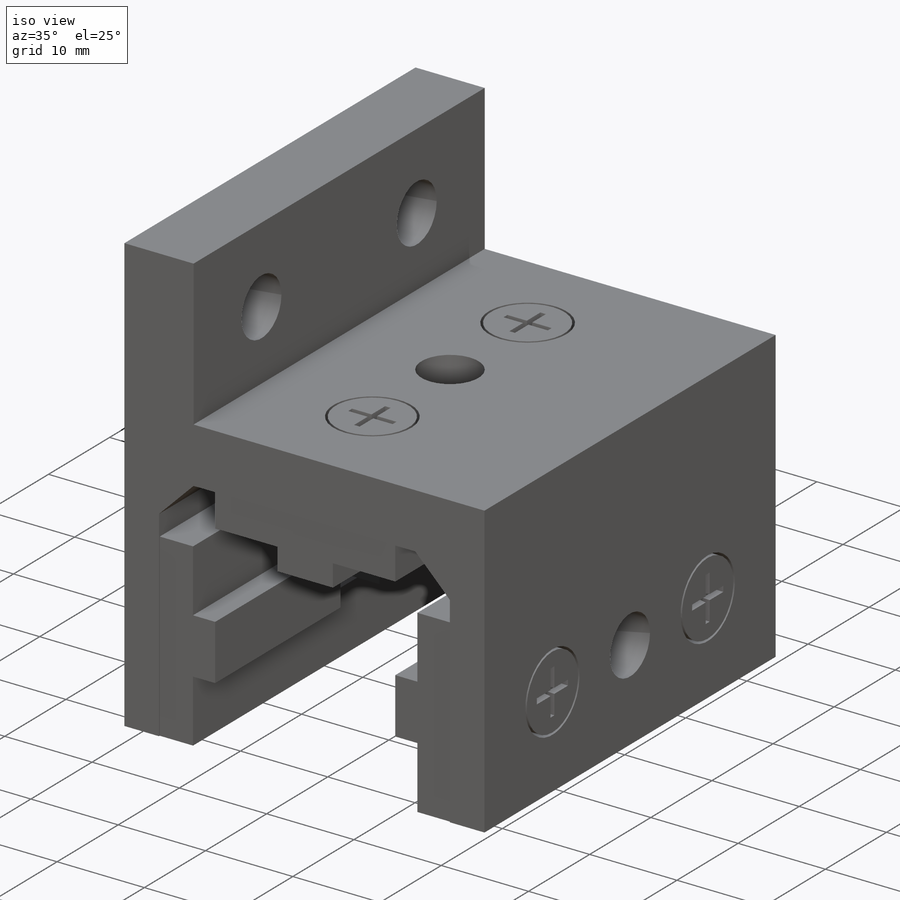
[diagram: iso view]
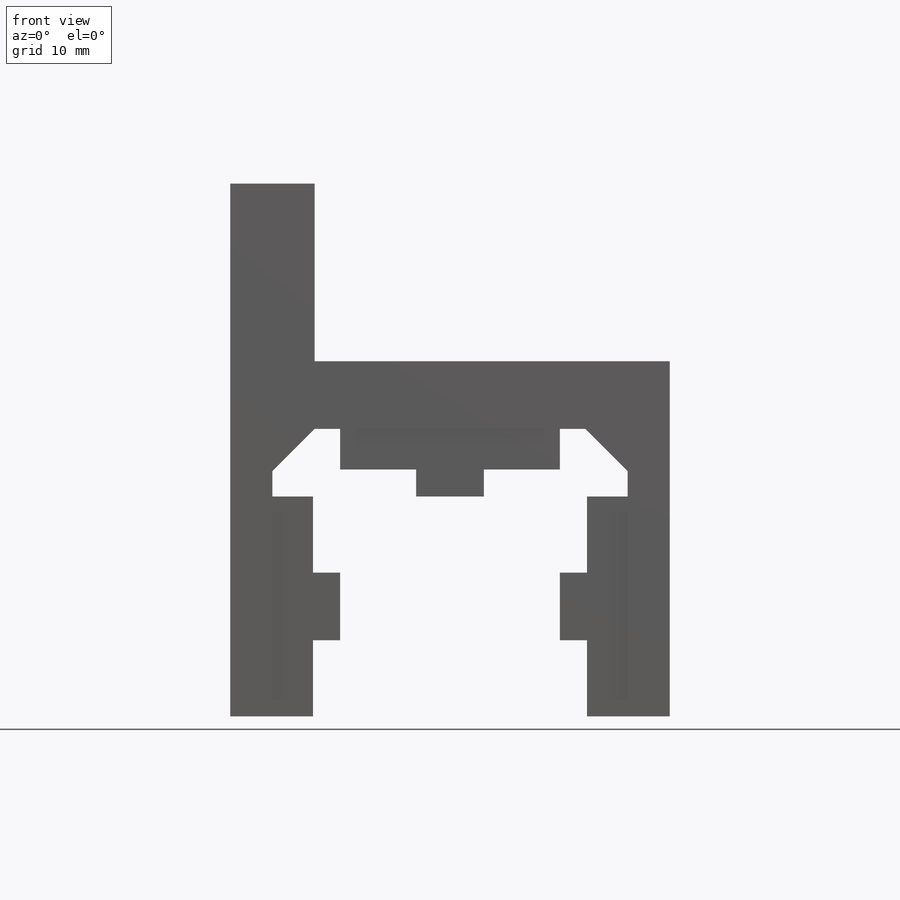
[diagram: front view]
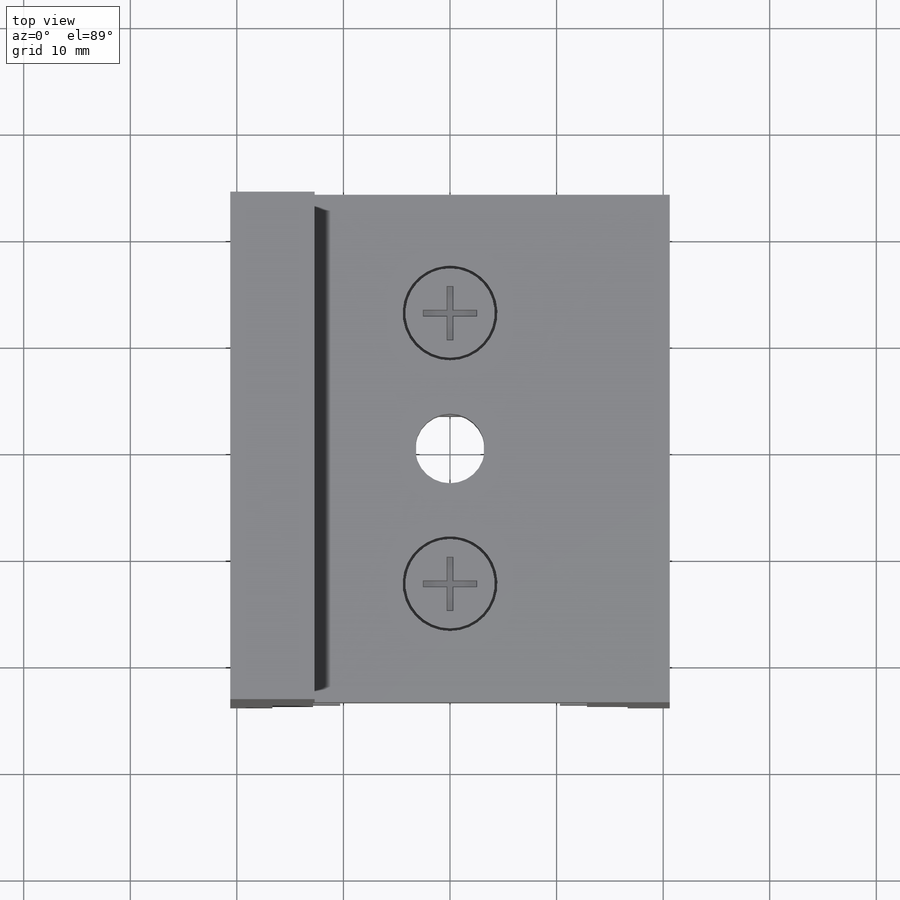
[diagram: top view]
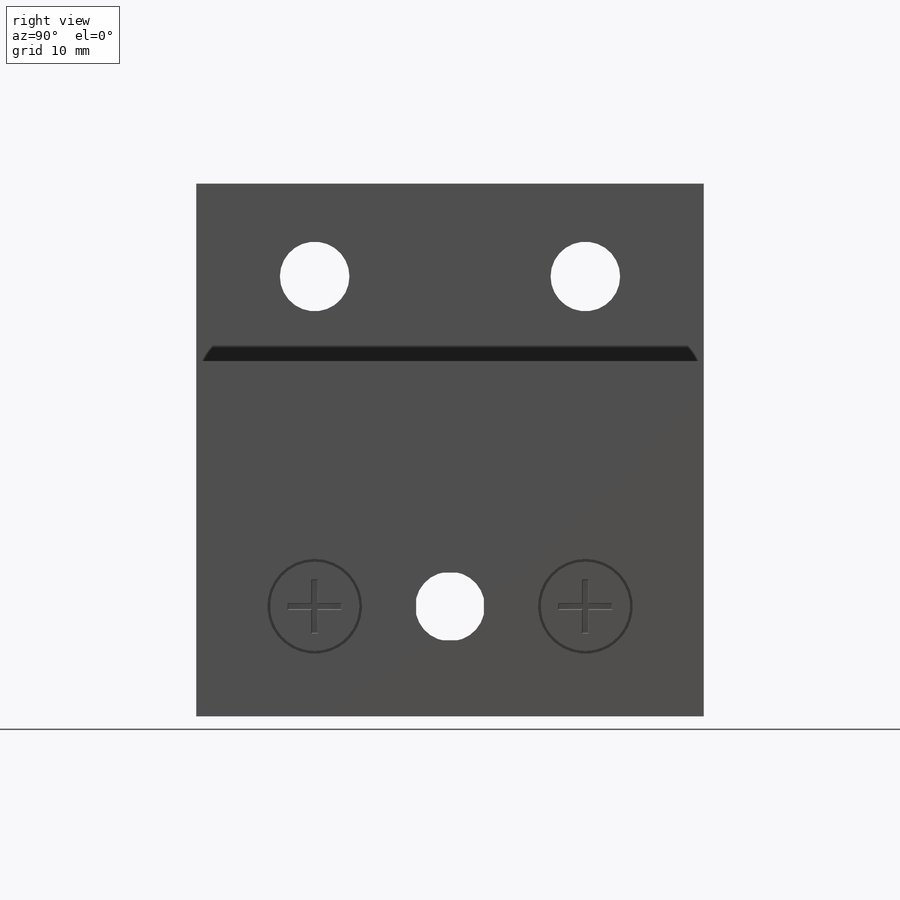
[diagram: right view]
SOLIDWORKS PART (.sldprt)
format: sldprt  version: not decoded by parser v0  size: 528,384 bytes
history: native  units: mm
features: sketch x14, cut_extrude x9, mirror x5, extrude x4, material x1 (+15 scaffold rows collapsed; 1 parser-record rows omitted)
feature tree (49):
  scaffold x15  (default folders/planes/origin — collapsed)
  material  "Material <not specified>"
  sketch  "Sketch1"  dims[c1.Ht=33.3248mm c1.Base Wd=41.2496mm c1.D2=~4.614919mm c2.D2=45.0deg c2.D3=~21.614855mm c2.Leg Thick=3.9624mm c2.Top Thick=6.35mm c2.Pad Wd=20.6248mm c2.Peak Wd=25.4mm]
  extrude  "Boss-Extrude1"  Depth=47.625mm Lg=47.625mm
  sketch  "Sketch2"  dims[Pad Wd=20.6248mm Pad Thick 1=6.35mm Pad Thick 2=3.81mm Pad Nose=6.35mm]
  extrude  "Boss-Extrude2"  Depth=47.371mm Pad Lg=47.371mm
  sketch  "Sketch11"
  cut_extrude  "Cut-Extrude5"  [1 undecoded]
  sketch  "Sketch12"
  cut_extrude  "Cut-Extrude6"  [1 undecoded]
  mirror  "Mirror1"
  sketch  "Sketch3"  dims[Screw Head Dia=8.89mm Screw Spacing=25.4mm D1=0.254mm]
  cut_extrude  "Cut-Extrude1"  Depth=3.175mm
  sketch  "Sketch5"  dims[D1=0.635mm D2=5.08mm]
  cut_extrude  "Cut-Extrude2"  Depth=0.762mm
  sketch  "Sketch13"  dims[c1.D1=8.89mm c2.D1=1.9812mm c2.D5=0.254mm c2.D6=2.54mm c2.D7=5.0mm]
  sketch  "Sketch14"  dims[D1=0.635mm D2=5.08mm]
  cut_extrude  "Cut-Extrude7"  Depth=0.762mm
  mirror  "Mirror4"
  mirror  "Mirror3"
  sketch  "Sketch9"  dims[Top Hole Dia=6.5278mm]
  cut_extrude  "Cut-Extrude4"  [1 undecoded]
  sketch  "Sketch15"  dims[Side Wall Hole Dia=6.5278mm]
  cut_extrude  "Cut-Extrude8"  [1 undecoded]
  sketch  "Sketch6"  dims[Top Flange Thick=2.54mm Oall Ht=49.9872mm Side Flange Thickness=7.9248mm]
  extrude  "Side Flange"  [1 undecoded]
  sketch  "Sketch7"  dims[Side Flange Hole Dia=6.5278mm D2=~40.516448mm Hole Offset=~4.374938mm Side Flange Hole Spacing=41.275mm]
  cut_extrude  "Side Flange Hole"  [1 undecoded]
  sketch  "Sketch16"  dims[Oall Wd=41.2496mm Top Flange Thickness=7.9248mm]
  extrude  "Top Flange"  [1 undecoded]
  sketch  "Sketch17"  dims[Top Flange Hole Dia=6.5278mm Top Flange Hole Spacing=57.15mm]
  cut_extrude  "Top Flange Hole"  [1 undecoded]
  parser-record x1  (decoder bookkeeping rows leaked as tree rows — omitted from the tree; the rows remain in map.json)
  mirror  "Mirror7"
  mirror  "Mirror6"
decode coverage: 17 of 32 modeling features carry decoded parameters
note: ~ marks probable driven/reference dimensions
note: 8 parameter values undecoded
summary: no parameter record found for 8 features
note: suppression state not decoded; provenance and decode notes live in map.json
